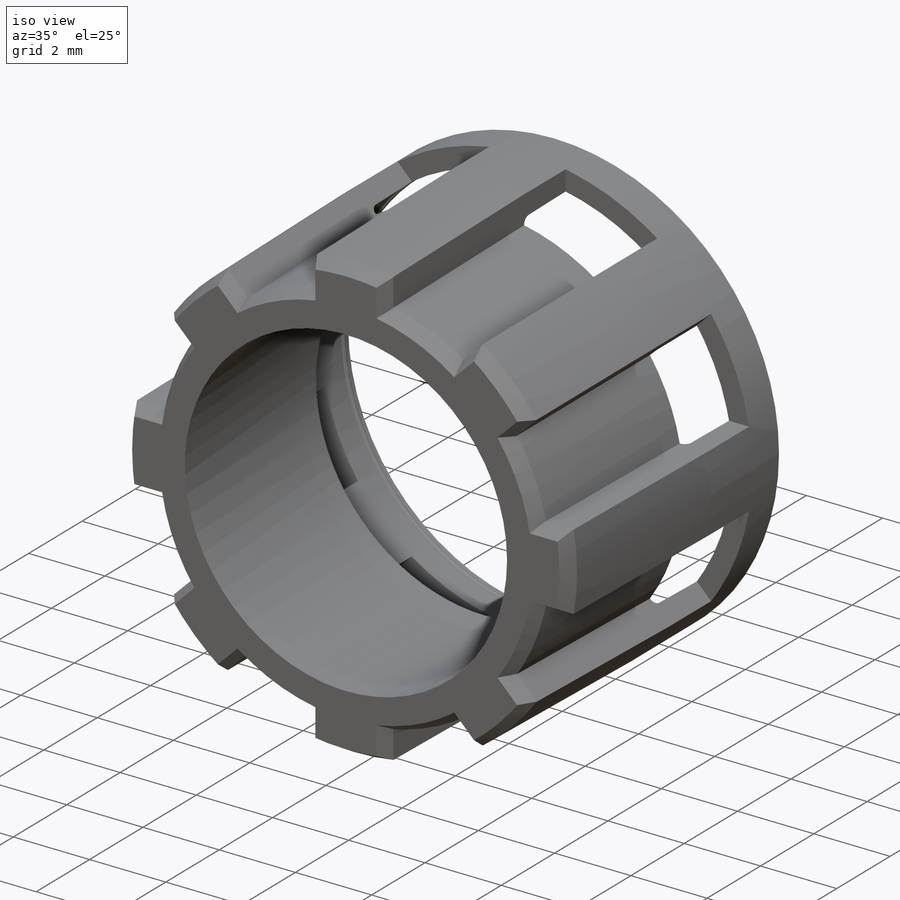
[diagram: iso view]
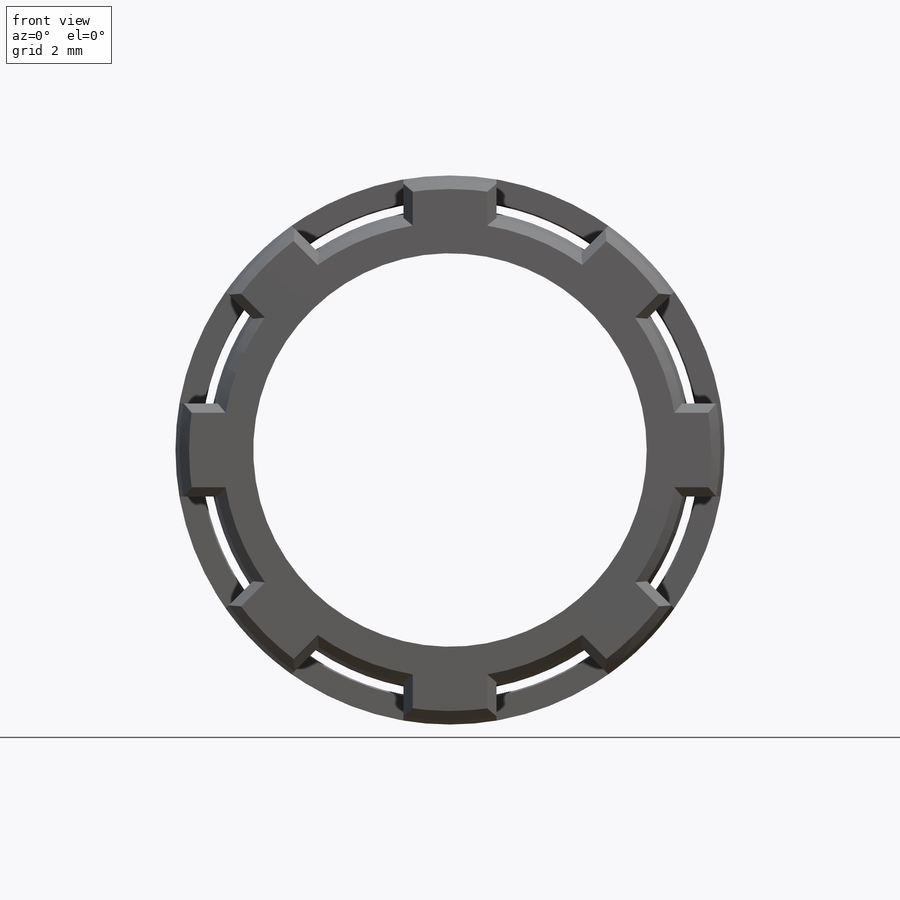
[diagram: front view]
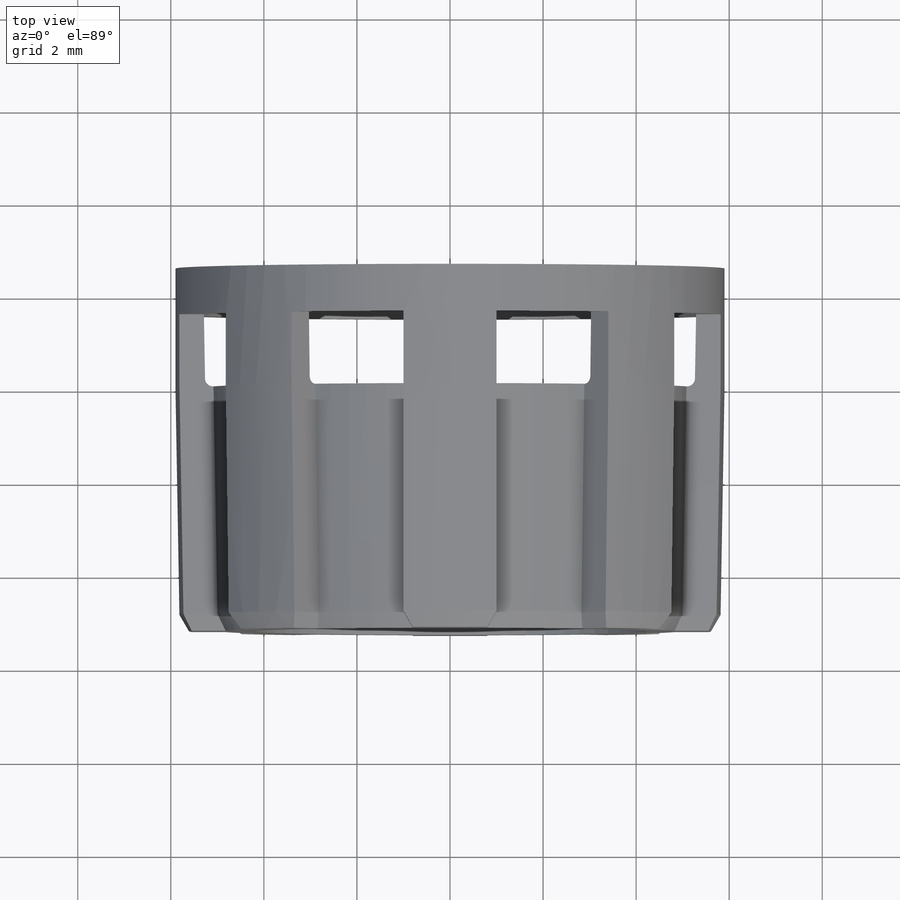
[diagram: top view]
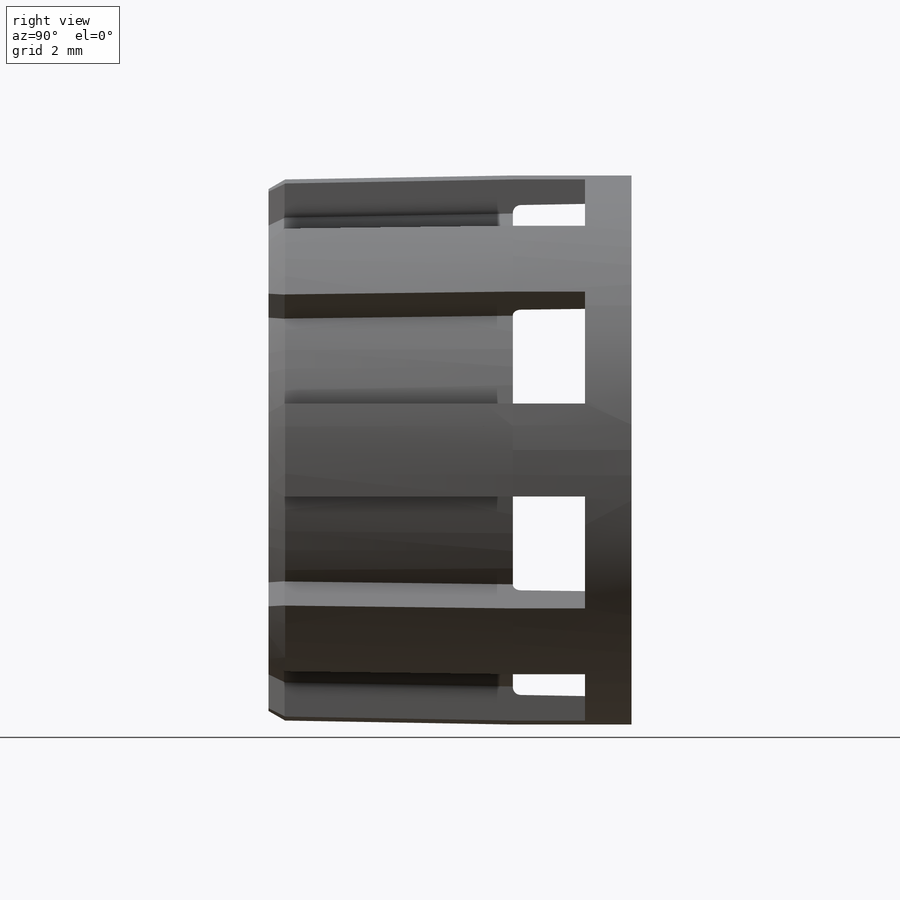
[diagram: right view]
SOLIDWORKS PART (.sldprt)
format: sldprt  version: not decoded by parser v0  size: 397,824 bytes
history: native  units: mm
features: sketch x6, plane x4, chamfer x3, cut_extrude x3, pattern_circular x2, fillet x2, material x1, extrude x1, revolve x1 (+11 scaffold rows collapsed)
feature tree (34):
  scaffold x11  (default folders/planes/origin — collapsed)
  material  "Material <not specified>"
  plane  "Plane1"
  plane  "Plane2"
  plane  "Plane3"
  sketch  "Sketch8"  dims[D1=11.8mm]
  extrude  "Main body"  Depth=5.25mm
  chamfer  "Chamfer2"  Distance=0.2mm Angle=60deg
  sketch  "Sketch14"  dims[c1.D1=10.36mm c1.D2=12.0mm c2.D1=5.18mm c2.D2=6.0mm]
  cut_extrude  "Splines"  Depth=1.55mm
  chamfer  "Chamfer3"  Distance=0.2mm Angle=60deg
  chamfer  "Chamfer4"  Distance=0.2mm Angle=60deg
  pattern_circular  "CirPattern1"  Count=8 Angle=360deg
  sketch  "Sketch10"
  sketch  "Sketch3"  dims[D1=9.0mm]
  cut_extrude  "Center hole"  [1 undecoded]
  pattern_circular  "Draft9"  Angle=2deg  [1 undecoded]
  sketch  "Sketch15"  dims[D1=10.8mm]
  cut_extrude  "Larger hole at end"  Depth=2.55mm
  plane  "Plane4"  Offset=0.15mm
  sketch  "Sketch12"  dims[D2=0.1mm D1=0.2mm]
  revolve  "Revolve1"  Angle=360deg
  fillet  "Fillet1"  Radius=0.1mm
  fillet  "Fillet2"  Radius=0.17mm
decode coverage: 16 of 18 modeling features carry decoded parameters
note: 2 parameter values undecoded
note: suppression state not decoded; provenance and decode notes live in map.json
